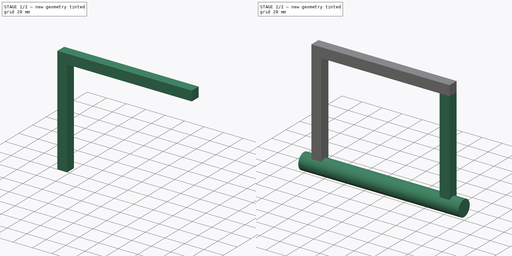
[diagram: build sequence overview — one tinted view per stage of 2, left to right]
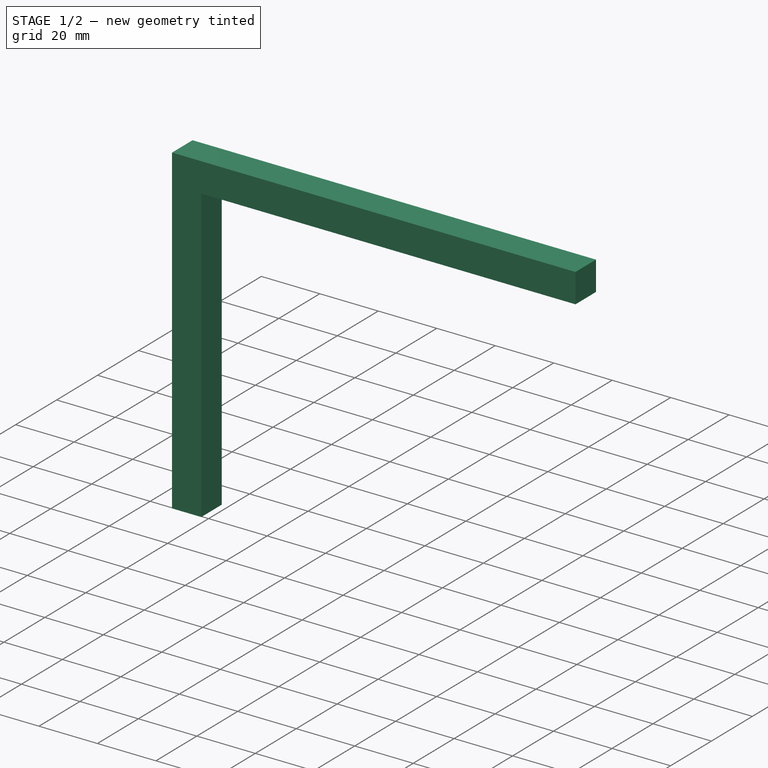
[diagram: stage 1 of 2 — iso view after this stage's code; geometry added in this stage tinted green]
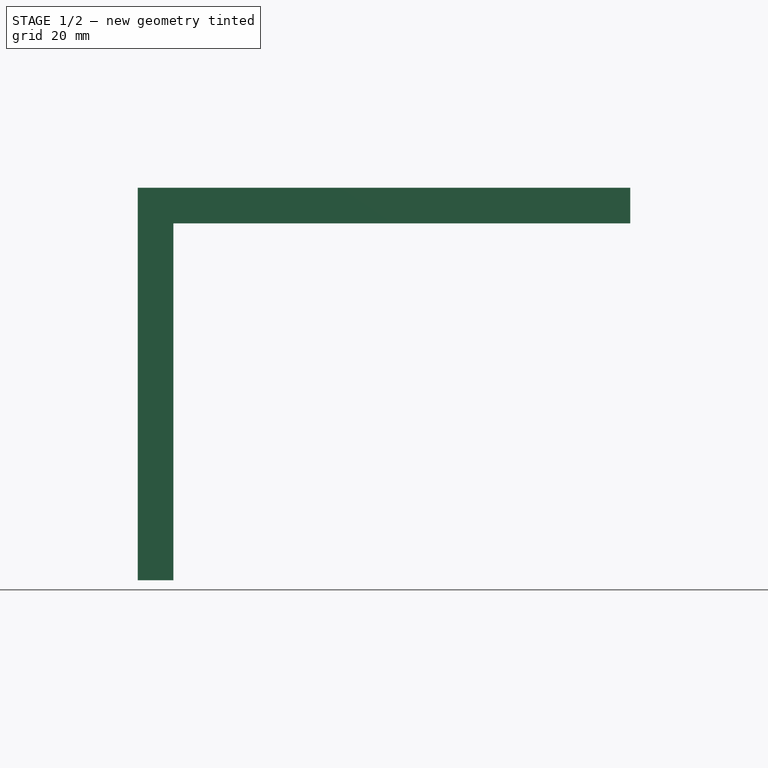
[diagram: stage 1 of 2 — front view after this stage's code; geometry added in this stage tinted green]
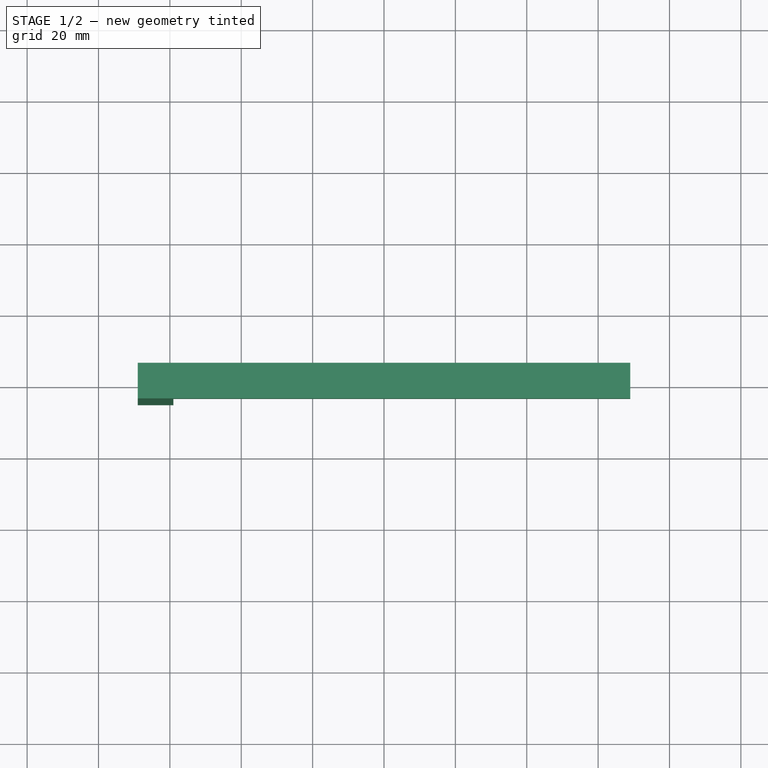
[diagram: stage 1 of 2 — top view after this stage's code; geometry added in this stage tinted green]
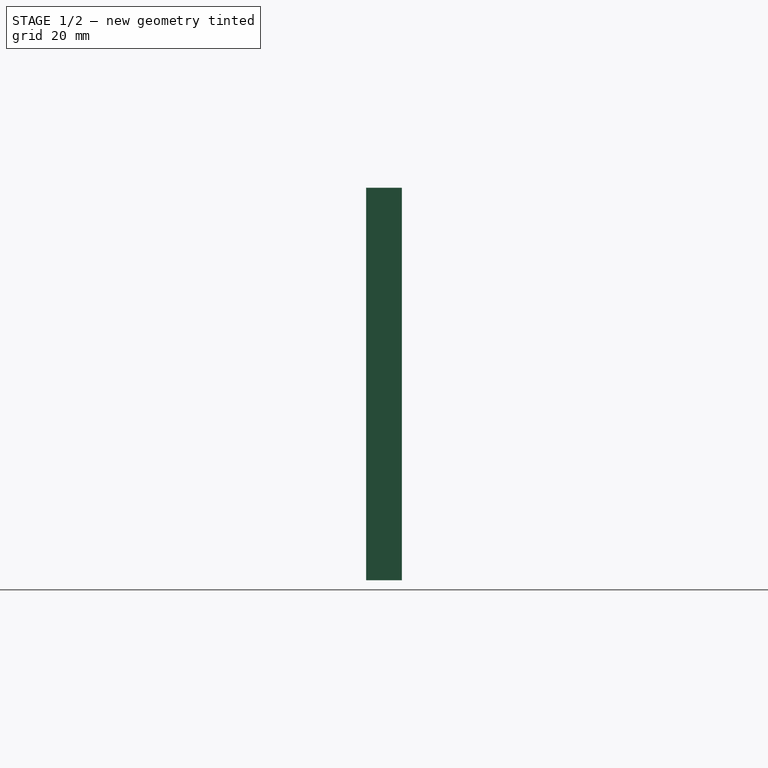
[diagram: stage 1 of 2 — right view after this stage's code; geometry added in this stage tinted green]
FCSTD DOCUMENT  (FreeCAD 0.16R6703 (Git))
Label: lever
License: All rights reserved
LicenseURL: http://en.wikipedia.org/wiki/All_rights_reserved
objects: Sketcher::SketchObject×3, PartDesign::Pad×3, PartDesign::Mirrored×1
note: 10 computed .brp shape members not serialized (recipe doc carries the construction recipe); baked Part::Feature solids carry a one-line shape summary decoded from their .brp

FEATURE [Sketcher::SketchObject] Sketch
  Placement = pos=(0,0,110) rot=(1,0,0;3.14159rad)
  sketch-geometry (4):
    g0: LineSegment StartX=-69 StartY=5 StartZ=0 EndX=69 EndY=5 EndZ=0
    g1: LineSegment StartX=69 StartY=5 StartZ=0 EndX=69 EndY=-5 EndZ=0
    g2: LineSegment StartX=69 StartY=-5 StartZ=0 EndX=-69 EndY=-5 EndZ=0
    g3: LineSegment StartX=-69 StartY=-5 StartZ=0 EndX=-69 EndY=5 EndZ=0
  constraints (11):
    c: Coincident(g0,g1)
    c: Coincident(g1,g2)
    c: Coincident(g2,g3)
    c: Coincident(g3,g0)
    c: Horizontal(g0)
    c: Horizontal(g2)
    c: Vertical(g1)
    c: Vertical(g3)
    c: Symmetric(g2,g0,g-1)
    c: Distance(g1) = 10
    c: Distance(g0) = 138
FEATURE [PartDesign::Pad] Pad
  Length = 10
  Length2 = 100
  Placement = pos=(0,0,110) rot=(1,0,0;3.14159rad)
  Sketch = -> Sketch
  Type = 0
FEATURE [Sketcher::SketchObject] Sketch001
  ExternalGeometry = -> [Pad]
  Placement = pos=(0,0,100) rot=(1,0,0;3.14159rad)
  Support = -> Pad [Face6]
  sketch-geometry (4):
    g0: LineSegment StartX=-69 StartY=5 StartZ=0 EndX=-59 EndY=5 EndZ=0
    g1: LineSegment StartX=-59 StartY=5 StartZ=0 EndX=-59 EndY=-5 EndZ=0
    g2: LineSegment StartX=-59 StartY=-5 StartZ=0 EndX=-69 EndY=-5 EndZ=0
    g3: LineSegment StartX=-69 StartY=-5 StartZ=0 EndX=-69 EndY=5 EndZ=0
  constraints (11):
    c: Coincident(g0,g1)
    c: Coincident(g1,g2)
    c: Coincident(g2,g3)
    c: Coincident(g3,g0)
    c: Horizontal(g0)
    c: Horizontal(g2)
    c: Vertical(g1)
    c: Vertical(g3)
    c: Coincident(g0,g-3)
    c: Coincident(g2,g-3)
    c: Equal(g1,g0)
FEATURE [PartDesign::Pad] Pad001
  Length = 100
  Length2 = 100
  Placement = pos=(0,0,110) rot=(1,0,0;3.14159rad)
  Sketch = -> Sketch001
  Type = 0
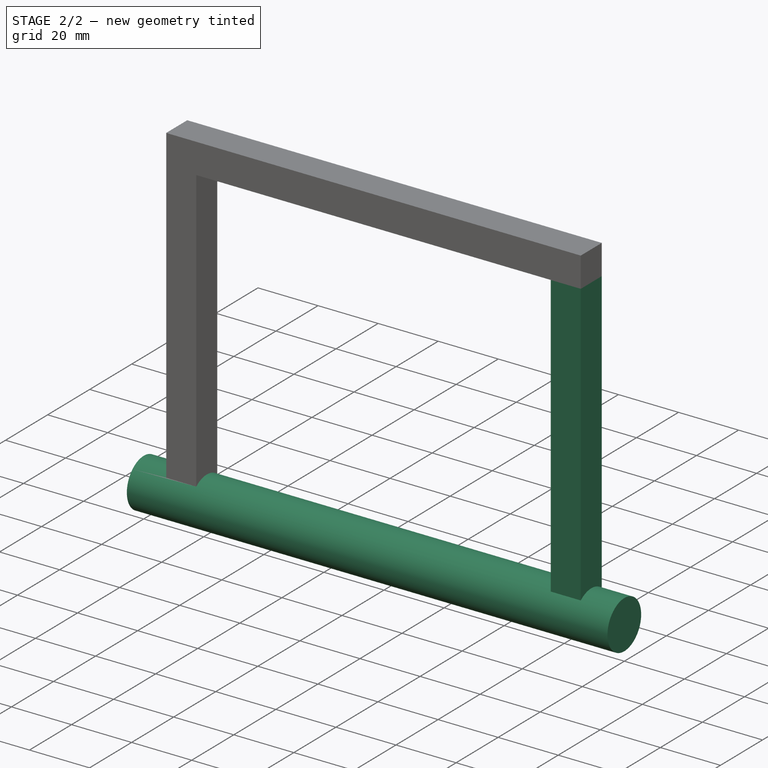
[diagram: stage 2 of 2 — iso view after this stage's code; geometry added in this stage tinted green]
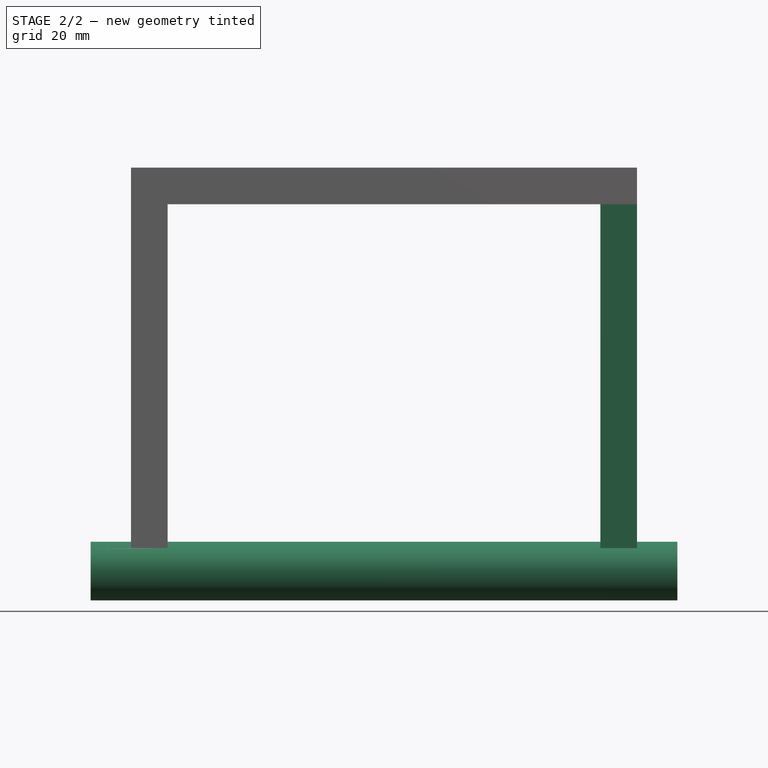
[diagram: stage 2 of 2 — front view after this stage's code; geometry added in this stage tinted green]
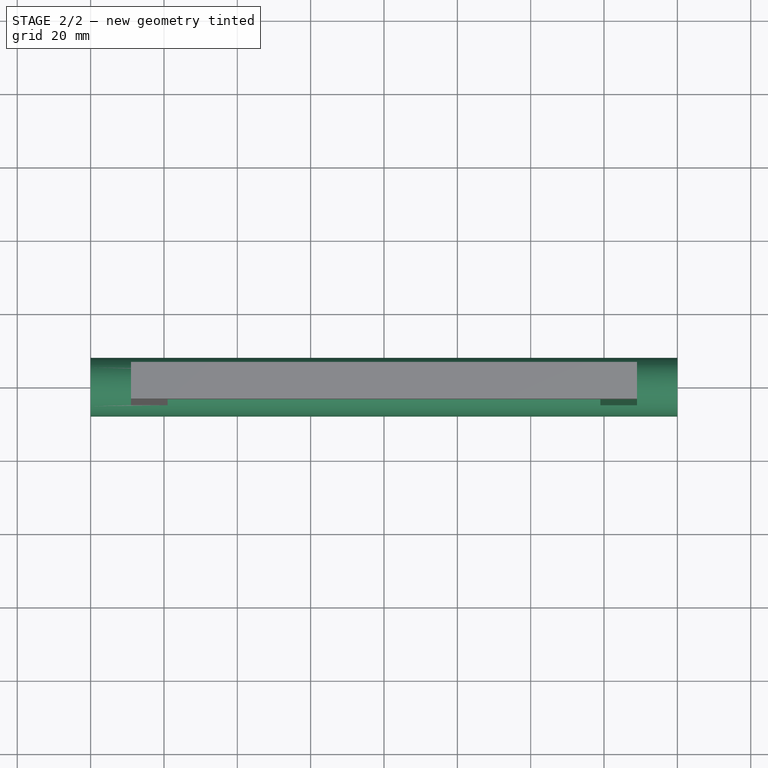
[diagram: stage 2 of 2 — top view after this stage's code; geometry added in this stage tinted green]
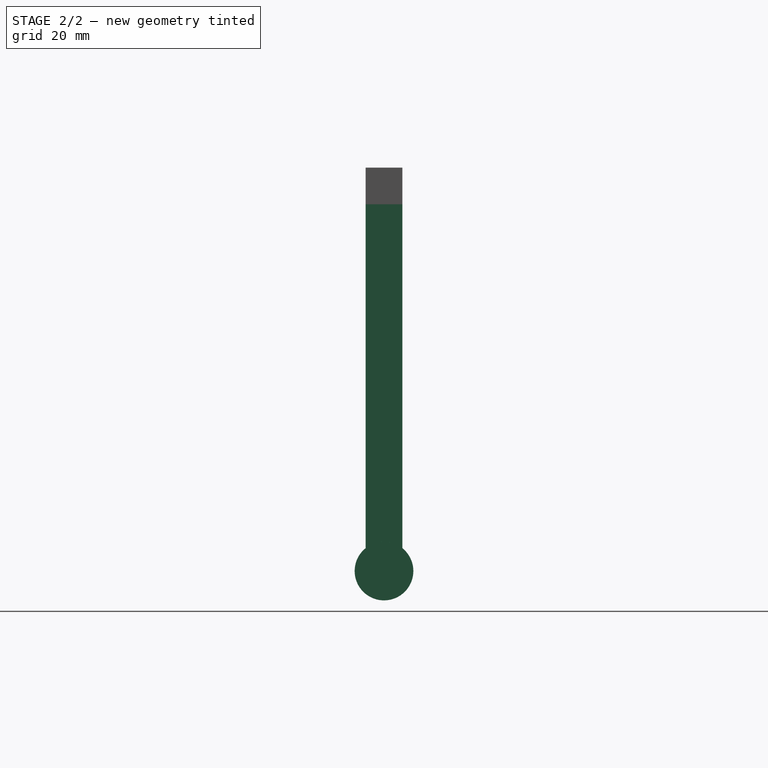
[diagram: stage 2 of 2 — right view after this stage's code; geometry added in this stage tinted green]
FEATURE [PartDesign::Mirrored] Mirrored
  MirrorPlane = -> Sketch001 [V_Axis]
  Originals = -> [Pad001]
  Placement = pos=(0,0,110) rot=(1,0,0;3.14159rad)
FEATURE [Sketcher::SketchObject] Sketch002
  ExternalGeometry = -> [Mirrored]
  Placement = pos=(-69,0,110) rot=(0.57735,0.57735,-0.57735;4.18879rad)
  Support = -> Mirrored [Face12]
  sketch-geometry (1):
    g0: Circle CenterX=0 CenterY=110 CenterZ=0 NormalX=0 NormalY=0 NormalZ=1 Radius=8
  constraints (3):
    c: PointOnObject(g0,g-3)
    c: Symmetric(g-3,g-3,g0)
    c: Radius(g0) = 8
FEATURE [PartDesign::Pad] Pad002
  Length = 11
  Length2 = 149
  Placement = pos=(0,0,110) rot=(1,0,0;3.14159rad)
  Sketch = -> Sketch002
  Type = 4
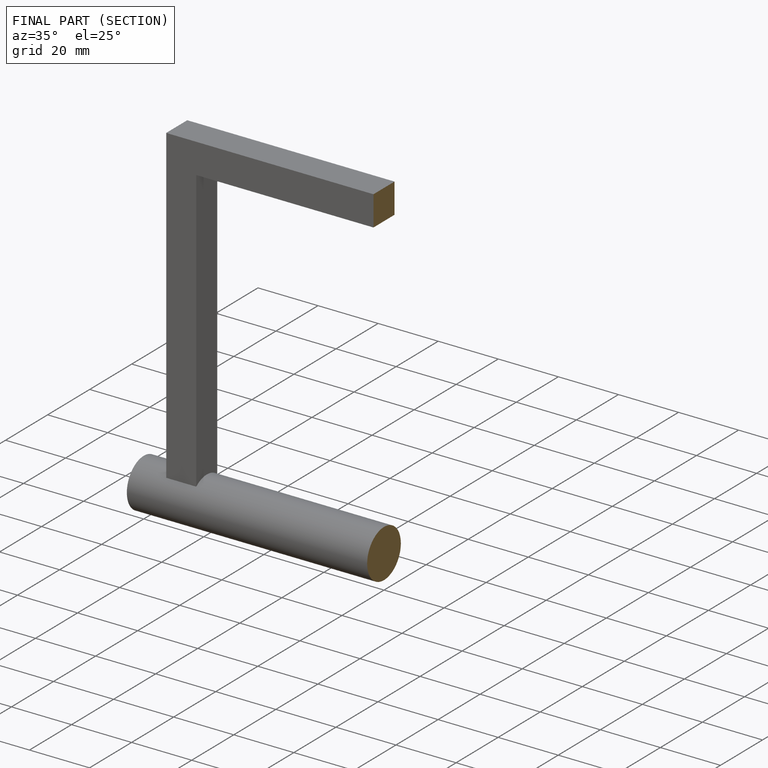
[diagram: finished part — half-section view (interior)]
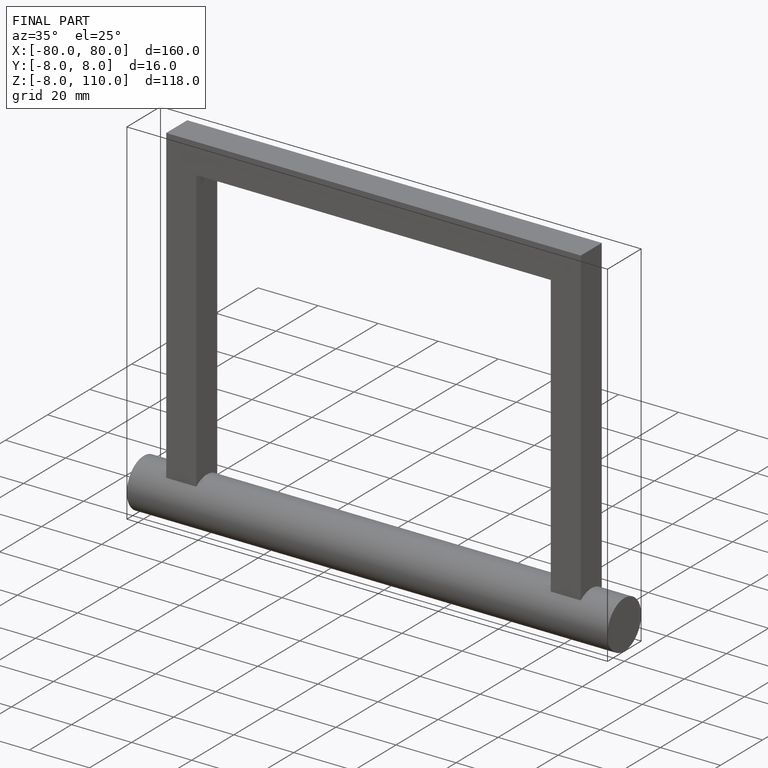
[diagram: finished part — iso view with bounding-box wireframe]
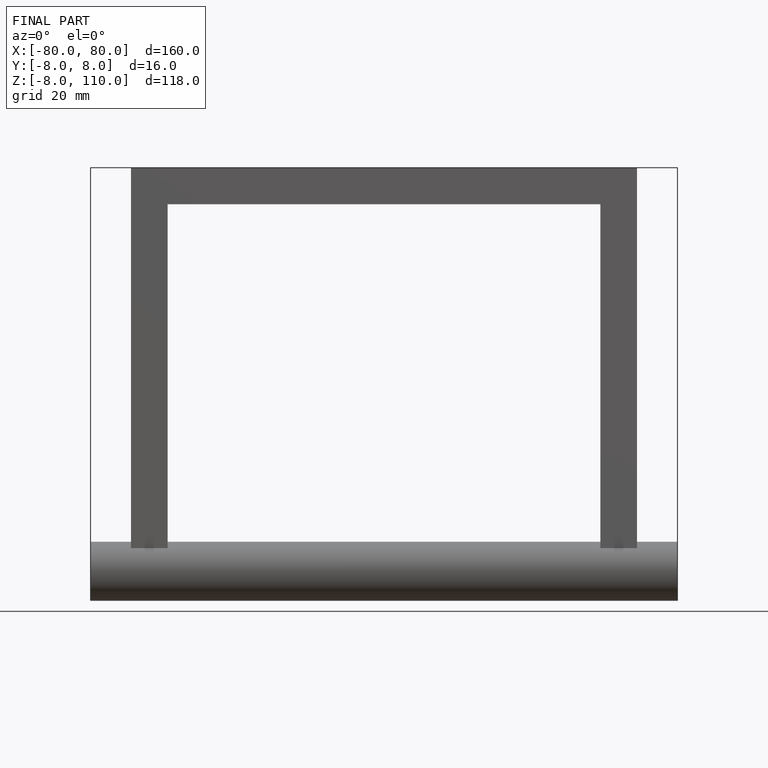
[diagram: finished part — front view with bounding-box wireframe]
